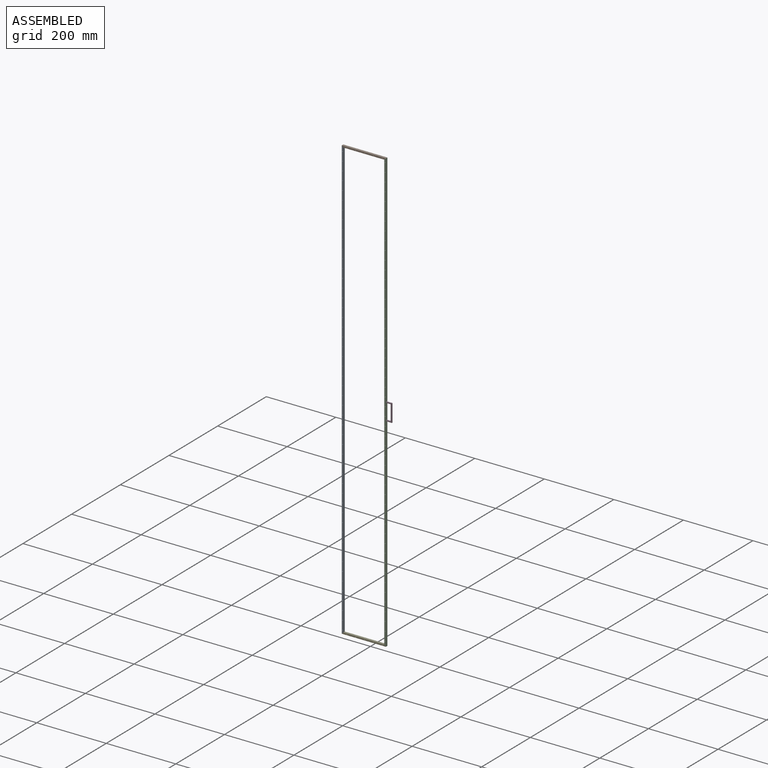
[diagram: assembled view]
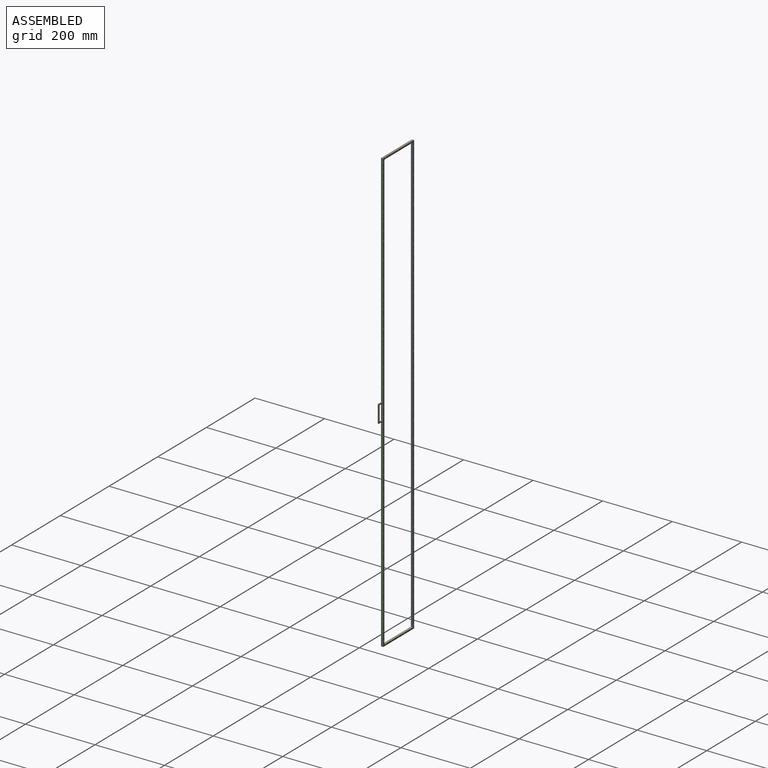
[diagram: assembled view, second angle]
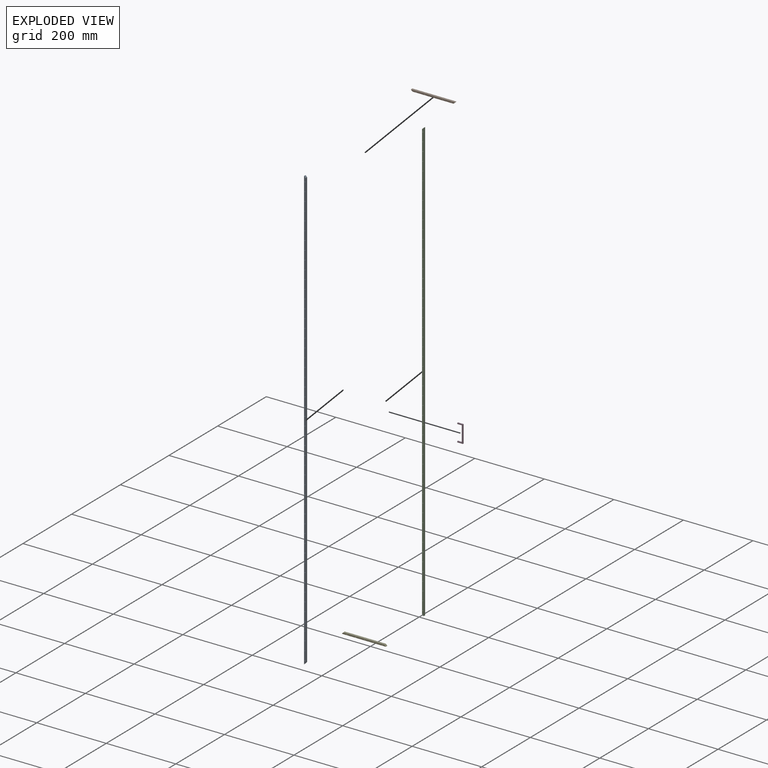
[diagram: exploded view]
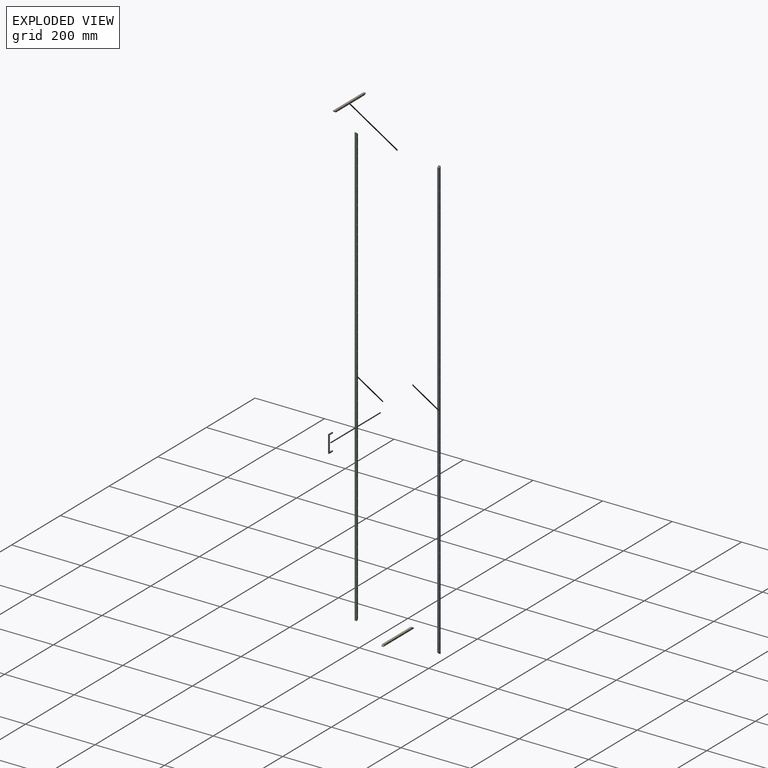
[diagram: exploded view, second angle]
ASSEMBLY  parts=5 mates=4
PART A: 56 faces, bbox 1270x6.4x4.5 mm
  f0: cylinder r=1.27mm len=6.35mm, axis (0,-1,0), area 50.7mm2, adj f53,f54
  f1: cylinder r=1.27mm len=6.35mm, axis (0,-1,0), area 50.7mm2, adj f53,f54
  f2: cylinder r=1.27mm len=6.35mm, axis (0,-1,0), area 50.7mm2, adj f53,f54
  f3: cylinder r=1.27mm len=6.35mm, axis (0,-1,0), area 50.7mm2, adj f53,f54
  f4: cylinder r=1.27mm len=6.35mm, axis (0,-1,0), area 50.7mm2, adj f53,f54
  f5: cylinder r=1.27mm len=6.35mm, axis (0,-1,0), area 50.7mm2, adj f53,f54
  f6: cylinder r=1.27mm len=6.35mm, axis (0,-1,0), area 50.7mm2, adj f53,f54
  f7: cylinder r=1.27mm len=6.35mm, axis (0,-1,0), area 50.7mm2, adj f53,f54
  f8: cylinder r=1.27mm len=6.35mm, axis (0,-1,0), area 50.7mm2, adj f53,f54
  f9: cylinder r=1.27mm len=6.35mm, axis (0,-1,0), area 50.7mm2, adj f53,f54
  f10: cylinder r=1.27mm len=6.35mm, axis (0,-1,0), area 50.7mm2, adj f53,f54
  f11: cylinder r=1.27mm len=6.35mm, axis (0,-1,0), area 50.7mm2, adj f53,f54
  f12: cylinder r=1.27mm len=6.35mm, axis (0,-1,0), area 50.7mm2, adj f53,f54
  f13: cylinder r=1.27mm len=6.35mm, axis (0,-1,0), area 50.7mm2, adj f53,f54
  f14: cylinder r=1.27mm len=6.35mm, axis (0,-1,0), area 50.7mm2, adj f53,f54
  f15: cylinder r=1.27mm len=6.35mm, axis (0,-1,0), area 50.7mm2, adj f53,f54
  f16: cylinder r=1.27mm len=6.35mm, axis (0,-1,0), area 50.7mm2, adj f53,f54
  f17: cylinder r=1.27mm len=6.35mm, axis (0,-1,0), area 50.7mm2, adj f53,f54
  f18: cylinder r=1.27mm len=6.35mm, axis (0,-1,0), area 50.7mm2, adj f53,f54
  f19: cylinder r=1.27mm len=6.35mm, axis (0,-1,0), area 50.7mm2, adj f53,f54
  f20: cylinder r=1.27mm len=6.35mm, axis (0,-1,0), area 50.7mm2, adj f53,f54
  f21: cylinder r=1.27mm len=6.35mm, axis (0,-1,0), area 50.7mm2, adj f53,f54
  f22: cylinder r=1.27mm len=6.35mm, axis (0,-1,0), area 50.7mm2, adj f53,f54
  f23: cylinder r=1.27mm len=6.35mm, axis (0,-1,0), area 50.7mm2, adj f53,f54
  f24: cylinder r=1.27mm len=6.35mm, axis (0,-1,0), area 50.7mm2, adj f53,f54
  f25: cylinder r=1.27mm len=6.35mm, axis (0,-1,0), area 50.7mm2, adj f53,f54
  f26: cylinder r=1.27mm len=6.35mm, axis (0,-1,0), area 50.7mm2, adj f53,f54
  f27: cylinder r=1.27mm len=6.35mm, axis (0,-1,0), area 50.7mm2, adj f53,f54
  f28: cylinder r=1.27mm len=6.35mm, axis (0,-1,0), area 50.7mm2, adj f53,f54
  f29: cylinder r=1.27mm len=6.35mm, axis (0,-1,0), area 50.7mm2, adj f53,f54
  f30: cylinder r=1.27mm len=6.35mm, axis (0,-1,0), area 50.7mm2, adj f53,f54
  f31: cylinder r=1.27mm len=6.35mm, axis (0,-1,0), area 50.7mm2, adj f53,f54
  f32: cylinder r=1.27mm len=6.35mm, axis (0,-1,0), area 50.7mm2, adj f53,f54
  f33: cylinder r=1.27mm len=6.35mm, axis (0,-1,0), area 50.7mm2, adj f53,f54
  f34: cylinder r=1.27mm len=6.35mm, axis (0,-1,0), area 50.7mm2, adj f53,f54
  f35: cylinder r=1.27mm len=6.35mm, axis (0,-1,0), area 50.7mm2, adj f53,f54
  f36: cylinder r=1.27mm len=6.35mm, axis (0,-1,0), area 50.7mm2, adj f53,f54
  f37: cylinder r=1.27mm len=6.35mm, axis (0,-1,0), area 50.7mm2, adj f53,f54
  f38: cylinder r=1.27mm len=6.35mm, axis (0,-1,0), area 50.7mm2, adj f53,f54
  f39: cylinder r=1.27mm len=6.35mm, axis (0,-1,0), area 50.7mm2, adj f53,f54
  f40: cylinder r=1.27mm len=6.35mm, axis (0,-1,0), area 50.7mm2, adj f53,f54
  f41: cylinder r=1.27mm len=6.35mm, axis (0,-1,0), area 50.7mm2, adj f53,f54
  f42: cylinder r=1.27mm len=6.35mm, axis (0,-1,0), area 50.7mm2, adj f53,f54
  f43: cylinder r=1.27mm len=6.35mm, axis (0,-1,0), area 50.7mm2, adj f53,f54
  f44: cylinder r=1.27mm len=6.35mm, axis (0,-1,0), area 50.7mm2, adj f53,f54
  f45: cylinder r=1.27mm len=6.35mm, axis (0,-1,0), area 50.7mm2, adj f53,f54
  f46: cylinder r=1.27mm len=6.35mm, axis (0,-1,0), area 50.7mm2, adj f53,f54
  f47: cylinder r=1.27mm len=6.35mm, axis (0,-1,0), area 50.7mm2, adj f53,f54
  f48: cylinder r=1.27mm len=6.35mm, axis (0,-1,0), area 50.7mm2, adj f53,f54
  f49: plane 6.35x4.49mm, normal (-0.71,0,0.71), area 40.3mm2, adj f50,f52,f53,f54
  f50: plane 1270x6.35mm, normal (0,0,-1), area 8064.5mm2, adj f49,f51,f53,f54
  f51: plane 6.35x4.49mm, normal (0.71,0,0.71), area 40.3mm2, adj f50,f52,f53,f54
  f52: plane 1261.02x6.35mm, normal (0,0,1), area 8007.5mm2, adj f49,f51,f53,f54
  f53: plane 1270x4.49mm, normal (0,-1,0), area 5428.9mm2, adj f0,f1,f2,f3,f4,f5,f6,f7
  f54: plane 1270x4.49mm, normal (0,1,0), area 5428.9mm2, adj f0,f1,f2,f3,f4,f5,f6,f7
  f55: cylinder r=1.27mm len=6.35mm, axis (0,-1,0), area 50.7mm2, adj f53,f54
PART B: 11 faces, bbox 127x6.4x4.5 mm
  f0: cylinder r=1.27mm len=6.35mm, axis (0,-1,0), area 50.7mm2, adj f8,f9
  f1: cylinder r=1.27mm len=6.35mm, axis (0,-1,0), area 50.7mm2, adj f8,f9
  f2: cylinder r=1.27mm len=6.35mm, axis (0,-1,0), area 50.7mm2, adj f8,f9
  f3: cylinder r=1.27mm len=6.35mm, axis (0,-1,0), area 50.7mm2, adj f8,f9
  f4: plane 6.35x4.49mm, normal (-0.71,0,0.71), area 40.3mm2, adj f5,f7,f8,f9
  f5: plane 127x6.35mm, normal (0,0,-1), area 806.5mm2, adj f4,f6,f8,f9
  f6: plane 6.35x4.49mm, normal (0.71,0,0.71), area 40.3mm2, adj f5,f7,f8,f9
  f7: plane 118.02x6.35mm, normal (0,0,1), area 749.4mm2, adj f4,f6,f8,f9
  f8: plane 127x4.49mm, normal (0,-1,0), area 524.7mm2, adj f0,f1,f2,f3,f4,f5,f6,f7
  f9: plane 127x4.49mm, normal (0,1,0), area 524.7mm2, adj f0,f1,f2,f3,f4,f5,f6,f7
  f10: cylinder r=1.27mm len=6.35mm, axis (0,-1,0), area 50.7mm2, adj f8,f9
PART C: same geometry as A
PART D: 10 faces, bbox 15.9x3.2x50.8 mm
  f0: plane 12.7x3.18mm, normal (0,0,-1), area 40.3mm2, adj f1,f7,f8,f9
  f1: plane 44.45x3.18mm, normal (-1,0,0), area 141.1mm2, adj f0,f2,f8,f9
  f2: plane 12.7x3.18mm, normal (0,0,1), area 40.3mm2, adj f1,f3,f8,f9
  f3: plane 3.18x3.18mm, normal (-1,0,0), area 10.1mm2, adj f2,f4,f8,f9
  f4: plane 15.88x3.18mm, normal (0,0,-1), area 50.4mm2, adj f3,f5,f8,f9
  f5: plane 50.8x3.18mm, normal (1,0,0), area 161.3mm2, adj f4,f6,f8,f9
  f6: plane 15.88x3.18mm, normal (0,0,1), area 50.4mm2, adj f5,f7,f8,f9
  f7: plane 3.18x3.18mm, normal (-1,0,0), area 10.1mm2, adj f0,f6,f8,f9
  f8: plane 50.8x15.88mm, normal (0,-1,0), area 241.9mm2, adj f0,f1,f2,f3,f4,f5,f6,f7
  f9: plane 50.8x15.88mm, normal (0,1,0), area 241.9mm2, adj f0,f1,f2,f3,f4,f5,f6,f7
PART E: same geometry as B
PLACE A rot(axis=(0,1,0),90deg) t=(-138.95,1.04,198.82)mm
PLACE B rot(axis=(-1,0,0),180deg) t=(-75.45,-5.31,262.32)mm
PLACE C rot(axis=(0,-1,0),90deg) t=(-11.95,1.04,-944.18)mm
PLACE D t=(-11.95,-2.14,-396.49)mm
PLACE E rot(axis=(0.93,0.36,0),0deg) t=(-75.45,1.04,-1007.68)mm
MATE fastened D.f7 <-> C.f50  axis (-1,0,0) through (-11.95,-2.14,-372.68)mm
MATE fastened C.f49 <-> E.f6  axis (-0.71,0,-0.71) through (-14.19,-2.14,-1005.44)mm
MATE fastened A.f51 <-> E.f4  axis (0.71,0,-0.71) through (-136.7,-2.14,-1005.44)mm
MATE fastened B.f4 <-> A.f49  axis (-0.71,0,-0.71) through (-136.7,-2.14,260.07)mm
